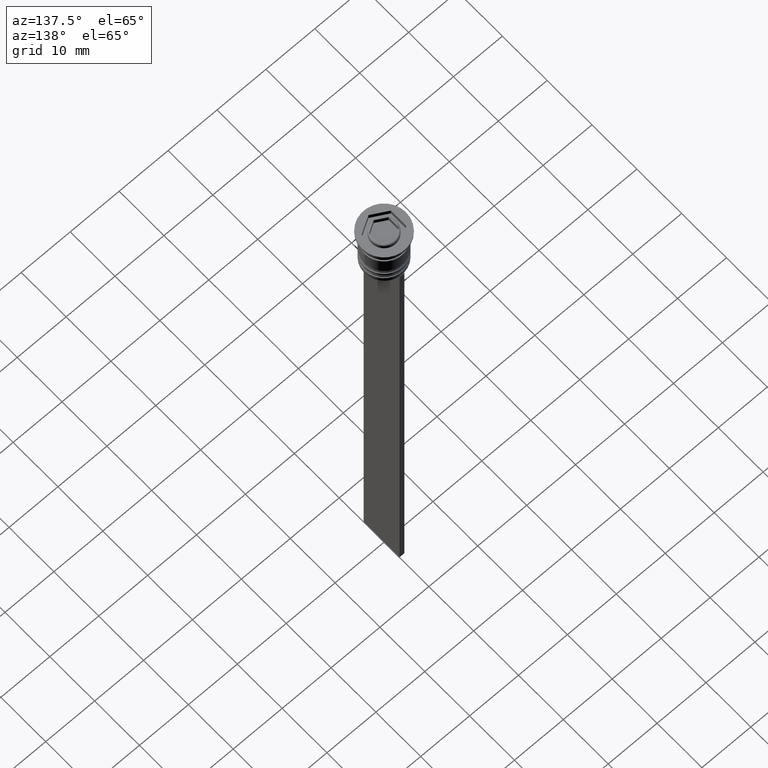
[diagram: clean part render]
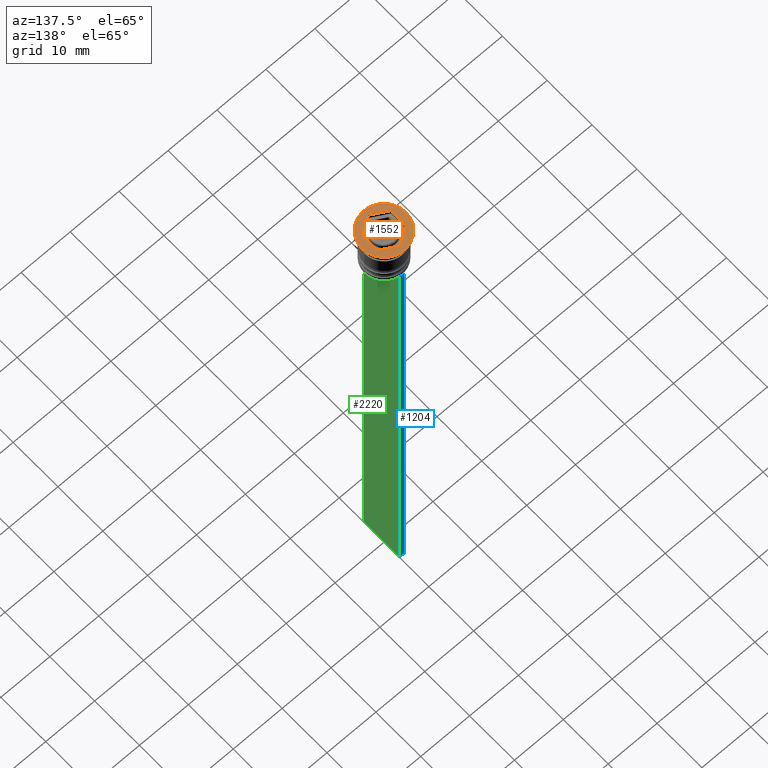
[diagram: same view with three faces highlighted in distinct colors, each labeled with its STEP entity id]
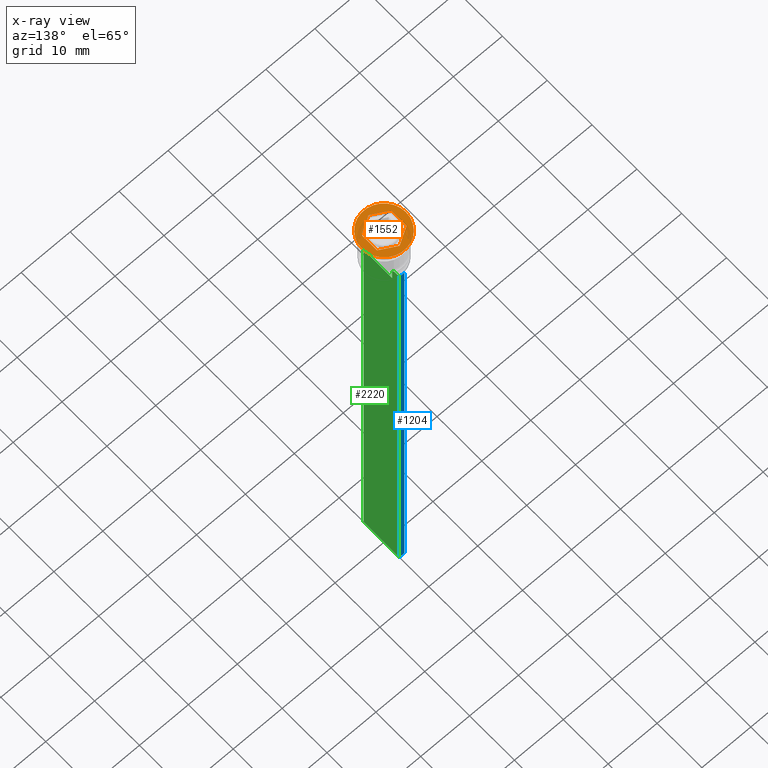
[diagram: x-ray of the same camera — body ghosted, the three highlighted faces saturated]
A machine part, auxiliary view with three faces highlighted in distinct colors.
The next image is the same camera in x-ray (body ghosted, the three faces saturated) — at least one of them is partly hidden behind the body in this view.
Their STEP definitions:

[orange] entity #1552 — the highlighted planar face has unit normal (0, -0, 1).
#2 = DIRECTION ( 'NONE',  ( 2.503857664561932376E-16, 1.000000000000000000, 0.000000000000000000 ) ) ;
#26 = LINE ( 'NONE', #1824, #820 ) ;
#28 = ORIENTED_EDGE ( 'NONE', *, *, #2082, .F. ) ;
#50 = VERTEX_POINT ( 'NONE', #525 ) ;
#77 = EDGE_CURVE ( 'NONE', #651, #1899, #1138, .T. ) ;
#141 = CARTESIAN_POINT ( 'NONE',  ( 0.000000000000000000, 0.000000000000000000, 0.000000000000000000 ) ) ;
#158 = ORIENTED_EDGE ( 'NONE', *, *, #911, .F. ) ;
#207 = CARTESIAN_POINT ( 'NONE',  ( 0.000000000000000000, 3.464101615137754386, 0.000000000000000000 ) ) ;
#307 = FACE_OUTER_BOUND ( 'NONE', #1343, .T. ) ;
#321 = ORIENTED_EDGE ( 'NONE', *, *, #1955, .F. ) ;
#335 = AXIS2_PLACEMENT_3D ( 'NONE', #141, #2515, #923 ) ;
#413 = DIRECTION ( 'NONE',  ( 1.000000000000000000, 0.000000000000000000, 0.000000000000000000 ) ) ;
#418 = CARTESIAN_POINT ( 'NONE',  ( 3.000000000000000000, -1.732050807568876971, 0.000000000000000000 ) ) ;
#460 = CARTESIAN_POINT ( 'NONE',  ( -3.000000000000000000, 1.732050807568876749, 0.000000000000000000 ) ) ;
#469 = DIRECTION ( 'NONE',  ( 1.000000000000000000, 0.000000000000000000, 0.000000000000000000 ) ) ;
#525 = CARTESIAN_POINT ( 'NONE',  ( -3.000000000000000000, -1.732050807568877637, 0.000000000000000000 ) ) ;
#527 = ORIENTED_EDGE ( 'NONE', *, *, #2304, .T. ) ;
#534 = VERTEX_POINT ( 'NONE', #2519 ) ;
#558 = CARTESIAN_POINT ( 'NONE',  ( 0.000000000000000000, 0.000000000000000000, 0.000000000000000000 ) ) ;
#609 = VECTOR ( 'NONE', #985, 1000.000000000000227 ) ;
#631 = VERTEX_POINT ( 'NONE', #763 ) ;
#651 = VERTEX_POINT ( 'NONE', #1123 ) ;
#670 = ORIENTED_EDGE ( 'NONE', *, *, #2361, .F. ) ;
#683 = VERTEX_POINT ( 'NONE', #1705 ) ;
#694 = CARTESIAN_POINT ( 'NONE',  ( 4.500000000000000000, 0.000000000000000000, 0.000000000000000000 ) ) ;
#705 = AXIS2_PLACEMENT_3D ( 'NONE', #2029, #886, #469 ) ;
#763 = CARTESIAN_POINT ( 'NONE',  ( -4.500000000000000000, 5.510910596163088569E-16, 0.000000000000000000 ) ) ;
#791 = DIRECTION ( 'NONE',  ( -0.000000000000000000, -0.000000000000000000, 1.000000000000000000 ) ) ;
#820 = VECTOR ( 'NONE', #1561, 1000.000000000000000 ) ;
#886 = DIRECTION ( 'NONE',  ( 0.000000000000000000, -0.000000000000000000, 1.000000000000000000 ) ) ;
#911 = EDGE_CURVE ( 'NONE', #1899, #1304, #1180, .T. ) ;
#923 = DIRECTION ( 'NONE',  ( 1.000000000000000000, 0.000000000000000000, 0.000000000000000000 ) ) ;
#985 = DIRECTION ( 'NONE',  ( -0.8660254037844385966, -0.5000000000000000000, 0.000000000000000000 ) ) ;
#988 = CIRCLE ( 'NONE', #335, 4.500000000000000000 ) ;
#1029 = ORIENTED_EDGE ( 'NONE', *, *, #1253, .F. ) ;
#1056 = AXIS2_PLACEMENT_3D ( 'NONE', #558, #791, #413 ) ;
#1105 = DIRECTION ( 'NONE',  ( -0.8660254037844387076, 0.4999999999999997780, 0.000000000000000000 ) ) ;
#1123 = CARTESIAN_POINT ( 'NONE',  ( 3.000000000000000888, 1.732050807568877415, 0.000000000000000000 ) ) ;
#1138 = LINE ( 'NONE', #1490, #1832 ) ;
#1180 = LINE ( 'NONE', #207, #609 ) ;
#1233 = LINE ( 'NONE', #1656, #2506 ) ;
#1253 = EDGE_CURVE ( 'NONE', #683, #534, #26, .T. ) ;
#1274 = ORIENTED_EDGE ( 'NONE', *, *, #77, .F. ) ;
#1304 = VERTEX_POINT ( 'NONE', #460 ) ;
#1342 = VERTEX_POINT ( 'NONE', #694 ) ;
#1343 = EDGE_LOOP ( 'NONE', ( #2316, #527 ) ) ;
#1490 = CARTESIAN_POINT ( 'NONE',  ( 3.000000000000000888, 1.732050807568877415, 0.000000000000000000 ) ) ;
#1511 = EDGE_LOOP ( 'NONE', ( #1274, #321, #1029, #670, #28, #158 ) ) ;
#1552 = ADVANCED_FACE ( 'NONE', ( #2222, #307 ), #2043, .T. ) ;
#1557 = LINE ( 'NONE', #2324, #1720 ) ;
#1561 = DIRECTION ( 'NONE',  ( 0.8660254037844385966, 0.5000000000000001110, 0.000000000000000000 ) ) ;
#1613 = DIRECTION ( 'NONE',  ( 0.000000000000000000, -1.000000000000000000, 0.000000000000000000 ) ) ;
#1656 = CARTESIAN_POINT ( 'NONE',  ( -3.000000000000000000, 1.732050807568876749, 0.000000000000000000 ) ) ;
#1705 = CARTESIAN_POINT ( 'NONE',  ( -2.112280747572084180E-16, -3.464101615137754830, 0.000000000000000000 ) ) ;
#1720 = VECTOR ( 'NONE', #2122, 1000.000000000000227 ) ;
#1732 = VECTOR ( 'NONE', #2, 1000.000000000000000 ) ;
#1824 = CARTESIAN_POINT ( 'NONE',  ( -2.112280747572084180E-16, -3.464101615137754830, 0.000000000000000000 ) ) ;
#1832 = VECTOR ( 'NONE', #1105, 1000.000000000000114 ) ;
#1899 = VERTEX_POINT ( 'NONE', #1918 ) ;
#1918 = CARTESIAN_POINT ( 'NONE',  ( -2.168404344971008868E-16, 3.464101615137753942, 0.000000000000000000 ) ) ;
#1955 = EDGE_CURVE ( 'NONE', #534, #651, #1976, .T. ) ;
#1976 = LINE ( 'NONE', #418, #1732 ) ;
#2029 = CARTESIAN_POINT ( 'NONE',  ( 0.000000000000000000, 0.000000000000000000, 0.000000000000000000 ) ) ;
#2043 = PLANE ( 'NONE',  #705 ) ;
#2082 = EDGE_CURVE ( 'NONE', #1304, #50, #1233, .T. ) ;
#2122 = DIRECTION ( 'NONE',  ( 0.8660254037844385966, -0.4999999999999998890, 0.000000000000000000 ) ) ;
#2203 = CIRCLE ( 'NONE', #1056, 4.500000000000000000 ) ;
#2222 = FACE_BOUND ( 'NONE', #1511, .T. ) ;
#2304 = EDGE_CURVE ( 'NONE', #631, #1342, #988, .T. ) ;
#2316 = ORIENTED_EDGE ( 'NONE', *, *, #2453, .T. ) ;
#2324 = CARTESIAN_POINT ( 'NONE',  ( -3.000000000000000000, -1.732050807568877637, 0.000000000000000000 ) ) ;
#2361 = EDGE_CURVE ( 'NONE', #50, #683, #1557, .T. ) ;
#2453 = EDGE_CURVE ( 'NONE', #1342, #631, #2203, .T. ) ;
#2506 = VECTOR ( 'NONE', #1613, 1000.000000000000000 ) ;
#2515 = DIRECTION ( 'NONE',  ( -0.000000000000000000, -0.000000000000000000, 1.000000000000000000 ) ) ;
#2519 = CARTESIAN_POINT ( 'NONE',  ( 3.000000000000000000, -1.732050807568876971, 0.000000000000000000 ) ) ;

[blue] entity #1204 — the highlighted planar face has unit normal (0, -1, -0).
#62 = EDGE_CURVE ( 'NONE', #1665, #465, #709, .T. ) ;
#101 = ORIENTED_EDGE ( 'NONE', *, *, #2375, .T. ) ;
#118 = ORIENTED_EDGE ( 'NONE', *, *, #62, .F. ) ;
#168 = ORIENTED_EDGE ( 'NONE', *, *, #2386, .T. ) ;
#382 = DIRECTION ( 'NONE',  ( -1.000000000000000000, 0.000000000000000000, 0.000000000000000000 ) ) ;
#427 = VERTEX_POINT ( 'NONE', #1579 ) ;
#459 = VERTEX_POINT ( 'NONE', #979 ) ;
#465 = VERTEX_POINT ( 'NONE', #1370 ) ;
#709 = LINE ( 'NONE', #1079, #982 ) ;
#712 = EDGE_CURVE ( 'NONE', #1665, #459, #2523, .T. ) ;
#779 = DIRECTION ( 'NONE',  ( 0.000000000000000000, -1.000000000000000000, -0.000000000000000000 ) ) ;
#799 = CARTESIAN_POINT ( 'NONE',  ( 0.5000000000000000000, 4.000000000000000000, -109.5000000000000000 ) ) ;
#952 = VECTOR ( 'NONE', #2127, 1000.000000000000000 ) ;
#979 = CARTESIAN_POINT ( 'NONE',  ( 0.5000000000000000000, 4.000000000000000000, -9.500000000000000000 ) ) ;
#982 = VECTOR ( 'NONE', #2063, 1000.000000000000000 ) ;
#990 = AXIS2_PLACEMENT_3D ( 'NONE', #2212, #779, #1186 ) ;
#1036 = EDGE_LOOP ( 'NONE', ( #118, #1452, #101, #168 ) ) ;
#1079 = CARTESIAN_POINT ( 'NONE',  ( -0.5000000000000000000, 4.000000000000000000, -1.437742251701450202 ) ) ;
#1150 = LINE ( 'NONE', #2336, #2096 ) ;
#1186 = DIRECTION ( 'NONE',  ( 0.000000000000000000, 0.000000000000000000, -1.000000000000000000 ) ) ;
#1204 = ADVANCED_FACE ( 'NONE', ( #2341 ), #1387, .F. ) ;
#1370 = CARTESIAN_POINT ( 'NONE',  ( -0.5000000000000000000, 4.000000000000000000, -109.5000000000000000 ) ) ;
#1387 = PLANE ( 'NONE',  #990 ) ;
#1452 = ORIENTED_EDGE ( 'NONE', *, *, #712, .T. ) ;
#1579 = CARTESIAN_POINT ( 'NONE',  ( 0.5000000000000000000, 4.000000000000000000, -109.5000000000000000 ) ) ;
#1665 = VERTEX_POINT ( 'NONE', #2420 ) ;
#1829 = VECTOR ( 'NONE', #382, 1000.000000000000000 ) ;
#2063 = DIRECTION ( 'NONE',  ( 0.000000000000000000, 0.000000000000000000, -1.000000000000000000 ) ) ;
#2096 = VECTOR ( 'NONE', #2535, 1000.000000000000000 ) ;
#2127 = DIRECTION ( 'NONE',  ( 1.000000000000000000, 0.000000000000000000, 0.000000000000000000 ) ) ;
#2212 = CARTESIAN_POINT ( 'NONE',  ( 0.5000000000000000000, 4.000000000000000000, -1.437742251701450202 ) ) ;
#2320 = CARTESIAN_POINT ( 'NONE',  ( 0.5000000000000000000, 4.000000000000000000, -9.500000000000000000 ) ) ;
#2336 = CARTESIAN_POINT ( 'NONE',  ( 0.5000000000000000000, 4.000000000000000000, -1.437742251701450202 ) ) ;
#2341 = FACE_OUTER_BOUND ( 'NONE', #1036, .T. ) ;
#2356 = LINE ( 'NONE', #799, #1829 ) ;
#2375 = EDGE_CURVE ( 'NONE', #459, #427, #1150, .T. ) ;
#2386 = EDGE_CURVE ( 'NONE', #427, #465, #2356, .T. ) ;
#2420 = CARTESIAN_POINT ( 'NONE',  ( -0.5000000000000000000, 4.000000000000000000, -9.500000000000000000 ) ) ;
#2523 = LINE ( 'NONE', #2320, #952 ) ;
#2535 = DIRECTION ( 'NONE',  ( 0.000000000000000000, 0.000000000000000000, -1.000000000000000000 ) ) ;

[green] entity #2220 — the highlighted planar face has unit normal (-1, 0, 0).
#103 = LINE ( 'NONE', #1661, #139 ) ;
#120 = DIRECTION ( 'NONE',  ( 0.000000000000000000, 0.000000000000000000, -1.000000000000000000 ) ) ;
#139 = VECTOR ( 'NONE', #494, 1000.000000000000000 ) ;
#153 = B_SPLINE_CURVE_WITH_KNOTS ( 'NONE', 3,
 ( #993, #807, #181, #399 ),
 .UNSPECIFIED., .F., .F.,
 ( 4, 4 ),
 ( 0.004956812174141191595, 0.005670477137898149653 ),
 .UNSPECIFIED. ) ;
#181 = CARTESIAN_POINT ( 'NONE',  ( 0.5000000000000000000, 2.517407211010872281, -9.833663366238582171 ) ) ;
#201 = DIRECTION ( 'NONE',  ( 0.000000000000000000, 0.000000000000000000, -1.000000000000000000 ) ) ;
#250 = LINE ( 'NONE', #851, #785 ) ;
#276 = CARTESIAN_POINT ( 'NONE',  ( 0.5000000000000000000, 2.347338918861097135, -10.00000000000000000 ) ) ;
#311 = CARTESIAN_POINT ( 'NONE',  ( 0.5000000000000000000, -4.000000000000000000, -1.437742251701450202 ) ) ;
#378 = EDGE_CURVE ( 'NONE', #2323, #512, #1307, .T. ) ;
#391 = CARTESIAN_POINT ( 'NONE',  ( 0.5000000000000000000, -4.000000000000000000, -9.500000000000000000 ) ) ;
#399 = CARTESIAN_POINT ( 'NONE',  ( 0.5000000000000000000, 2.347338918861097135, -10.00000000000000000 ) ) ;
#427 = VERTEX_POINT ( 'NONE', #1579 ) ;
#459 = VERTEX_POINT ( 'NONE', #979 ) ;
#494 = DIRECTION ( 'NONE',  ( 0.000000000000000000, -1.000000000000000000, 0.000000000000000000 ) ) ;
#510 = CARTESIAN_POINT ( 'NONE',  ( 0.5000000000000000000, 3.867815921162741422, -9.500000000000000000 ) ) ;
#512 = VERTEX_POINT ( 'NONE', #1916 ) ;
#537 = CARTESIAN_POINT ( 'NONE',  ( 0.5000000000000000000, -2.347338918861097135, 0.000000000000000000 ) ) ;
#539 = AXIS2_PLACEMENT_3D ( 'NONE', #2454, #1684, #1724 ) ;
#569 = LINE ( 'NONE', #391, #944 ) ;
#597 = VERTEX_POINT ( 'NONE', #1994 ) ;
#598 = CARTESIAN_POINT ( 'NONE',  ( 0.5000000000000000000, 2.347338918861097135, 0.000000000000000000 ) ) ;
#603 = EDGE_CURVE ( 'NONE', #2393, #2323, #1922, .T. ) ;
#627 = ORIENTED_EDGE ( 'NONE', *, *, #2172, .T. ) ;
#686 = ORIENTED_EDGE ( 'NONE', *, *, #2390, .T. ) ;
#739 = VECTOR ( 'NONE', #201, 1000.000000000000000 ) ;
#742 = ORIENTED_EDGE ( 'NONE', *, *, #2429, .T. ) ;
#749 = VECTOR ( 'NONE', #1229, 1000.000000000000000 ) ;
#785 = VECTOR ( 'NONE', #1809, 1000.000000000000000 ) ;
#807 = CARTESIAN_POINT ( 'NONE',  ( 0.5000000000000000000, 2.687094542495898075, -9.666938847453439010 ) ) ;
#834 = CARTESIAN_POINT ( 'NONE',  ( 0.5000000000000000000, -2.517408374291112416, -9.833662228483172285 ) ) ;
#851 = CARTESIAN_POINT ( 'NONE',  ( 0.5000000000000000000, -4.000000000000000000, -9.500000000000000000 ) ) ;
#854 = CARTESIAN_POINT ( 'NONE',  ( 0.5000000000000000000, -4.000000000000000000, -109.5000000000000000 ) ) ;
#866 = CARTESIAN_POINT ( 'NONE',  ( 0.5000000000000000000, -4.000000000000000000, -109.5000000000000000 ) ) ;
#926 = VERTEX_POINT ( 'NONE', #276 ) ;
#944 = VECTOR ( 'NONE', #1162, 1000.000000000000000 ) ;
#947 = ORIENTED_EDGE ( 'NONE', *, *, #603, .T. ) ;
#957 = VECTOR ( 'NONE', #1487, 1000.000000000000000 ) ;
#979 = CARTESIAN_POINT ( 'NONE',  ( 0.5000000000000000000, 4.000000000000000000, -9.500000000000000000 ) ) ;
#993 = CARTESIAN_POINT ( 'NONE',  ( 0.5000000000000000000, 2.856571371417138572, -9.500000000000000000 ) ) ;
#1019 = VECTOR ( 'NONE', #2458, 1000.000000000000000 ) ;
#1023 = EDGE_CURVE ( 'NONE', #459, #1802, #250, .T. ) ;
#1025 = CARTESIAN_POINT ( 'NONE',  ( 0.5000000000000000000, -2.347338918861097135, -10.00000000000000000 ) ) ;
#1026 = VECTOR ( 'NONE', #120, 1000.000000000000000 ) ;
#1066 = VERTEX_POINT ( 'NONE', #1327 ) ;
#1113 = VECTOR ( 'NONE', #1645, 1000.000000000000000 ) ;
#1150 = LINE ( 'NONE', #2336, #2096 ) ;
#1162 = DIRECTION ( 'NONE',  ( 0.000000000000000000, -1.000000000000000000, 0.000000000000000000 ) ) ;
#1174 = ORIENTED_EDGE ( 'NONE', *, *, #1897, .T. ) ;
#1216 = EDGE_LOOP ( 'NONE', ( #686, #2397, #742, #2468, #1174, #947, #2276, #1871, #1973, #627, #1735, #2401 ) ) ;
#1229 = DIRECTION ( 'NONE',  ( 0.000000000000000000, -1.000000000000000000, 0.000000000000000000 ) ) ;
#1307 = LINE ( 'NONE', #1893, #1019 ) ;
#1327 = CARTESIAN_POINT ( 'NONE',  ( 0.5000000000000000000, 2.856571371417138572, -9.500000000000000000 ) ) ;
#1355 = CARTESIAN_POINT ( 'NONE',  ( 0.5000000000000000000, -2.347338918861097135, -10.00000000000000000 ) ) ;
#1435 = EDGE_CURVE ( 'NONE', #597, #1655, #1449, .T. ) ;
#1449 = LINE ( 'NONE', #311, #1026 ) ;
#1454 = VERTEX_POINT ( 'NONE', #1640 ) ;
#1487 = DIRECTION ( 'NONE',  ( -0.000000000000000000, -0.000000000000000000, 1.000000000000000000 ) ) ;
#1507 = CARTESIAN_POINT ( 'NONE',  ( 0.5000000000000000000, -2.347338918861097135, -12.50000000000000000 ) ) ;
#1577 = LINE ( 'NONE', #598, #739 ) ;
#1579 = CARTESIAN_POINT ( 'NONE',  ( 0.5000000000000000000, 4.000000000000000000, -109.5000000000000000 ) ) ;
#1612 = CARTESIAN_POINT ( 'NONE',  ( 0.5000000000000000000, -2.687095498514037839, -9.666937905752043037 ) ) ;
#1640 = CARTESIAN_POINT ( 'NONE',  ( 0.5000000000000000000, 2.347338918861097135, -12.50000000000000000 ) ) ;
#1645 = DIRECTION ( 'NONE',  ( 0.000000000000000000, 1.000000000000000000, 0.000000000000000000 ) ) ;
#1655 = VERTEX_POINT ( 'NONE', #854 ) ;
#1661 = CARTESIAN_POINT ( 'NONE',  ( 0.5000000000000000000, -4.000000000000000000, -9.500000000000000000 ) ) ;
#1684 = DIRECTION ( 'NONE',  ( -1.000000000000000000, 0.000000000000000000, 0.000000000000000000 ) ) ;
#1689 = LINE ( 'NONE', #537, #957 ) ;
#1724 = DIRECTION ( 'NONE',  ( 0.000000000000000000, 0.000000000000000000, 1.000000000000000000 ) ) ;
#1735 = ORIENTED_EDGE ( 'NONE', *, *, #2375, .F. ) ;
#1780 = EDGE_CURVE ( 'NONE', #512, #597, #103, .T. ) ;
#1802 = VERTEX_POINT ( 'NONE', #510 ) ;
#1809 = DIRECTION ( 'NONE',  ( 0.000000000000000000, -1.000000000000000000, 0.000000000000000000 ) ) ;
#1871 = ORIENTED_EDGE ( 'NONE', *, *, #1780, .T. ) ;
#1872 = FACE_OUTER_BOUND ( 'NONE', #1216, .T. ) ;
#1893 = CARTESIAN_POINT ( 'NONE',  ( 0.5000000000000000000, -4.000000000000000000, -9.500000000000000000 ) ) ;
#1897 = EDGE_CURVE ( 'NONE', #2306, #2393, #1689, .T. ) ;
#1904 = PLANE ( 'NONE',  #539 ) ;
#1916 = CARTESIAN_POINT ( 'NONE',  ( 0.5000000000000000000, -3.867815921162741422, -9.500000000000000000 ) ) ;
#1922 = B_SPLINE_CURVE_WITH_KNOTS ( 'NONE', 3,
 ( #1025, #834, #1612, #1974 ),
 .UNSPECIFIED., .F., .F.,
 ( 4, 4 ),
 ( 0.01178336557230038467, 0.01249758354768160280 ),
 .UNSPECIFIED. ) ;
#1973 = ORIENTED_EDGE ( 'NONE', *, *, #1435, .T. ) ;
#1974 = CARTESIAN_POINT ( 'NONE',  ( 0.5000000000000000000, -2.856571371417138572, -9.500000000000000000 ) ) ;
#1994 = CARTESIAN_POINT ( 'NONE',  ( 0.5000000000000000000, -4.000000000000000000, -9.500000000000000000 ) ) ;
#2022 = LINE ( 'NONE', #866, #1113 ) ;
#2067 = CARTESIAN_POINT ( 'NONE',  ( 0.5000000000000000000, -2.856571371417138572, -9.500000000000000000 ) ) ;
#2074 = CARTESIAN_POINT ( 'NONE',  ( 0.5000000000000000000, 2.399999999999996803, -12.50000000000000000 ) ) ;
#2096 = VECTOR ( 'NONE', #2535, 1000.000000000000000 ) ;
#2172 = EDGE_CURVE ( 'NONE', #1655, #427, #2022, .T. ) ;
#2220 = ADVANCED_FACE ( 'NONE', ( #1872 ), #1904, .F. ) ;
#2276 = ORIENTED_EDGE ( 'NONE', *, *, #378, .T. ) ;
#2306 = VERTEX_POINT ( 'NONE', #1507 ) ;
#2315 = LINE ( 'NONE', #2074, #749 ) ;
#2323 = VERTEX_POINT ( 'NONE', #2067 ) ;
#2336 = CARTESIAN_POINT ( 'NONE',  ( 0.5000000000000000000, 4.000000000000000000, -1.437742251701450202 ) ) ;
#2375 = EDGE_CURVE ( 'NONE', #459, #427, #1150, .T. ) ;
#2390 = EDGE_CURVE ( 'NONE', #1802, #1066, #569, .T. ) ;
#2393 = VERTEX_POINT ( 'NONE', #1355 ) ;
#2397 = ORIENTED_EDGE ( 'NONE', *, *, #2408, .T. ) ;
#2401 = ORIENTED_EDGE ( 'NONE', *, *, #1023, .T. ) ;
#2408 = EDGE_CURVE ( 'NONE', #1066, #926, #153, .T. ) ;
#2429 = EDGE_CURVE ( 'NONE', #926, #1454, #1577, .T. ) ;
#2454 = CARTESIAN_POINT ( 'NONE',  ( 0.5000000000000000000, -4.000000000000000000, -1.437742251701450202 ) ) ;
#2458 = DIRECTION ( 'NONE',  ( 0.000000000000000000, -1.000000000000000000, 0.000000000000000000 ) ) ;
#2468 = ORIENTED_EDGE ( 'NONE', *, *, #2479, .T. ) ;
#2479 = EDGE_CURVE ( 'NONE', #1454, #2306, #2315, .T. ) ;
#2535 = DIRECTION ( 'NONE',  ( 0.000000000000000000, 0.000000000000000000, -1.000000000000000000 ) ) ;